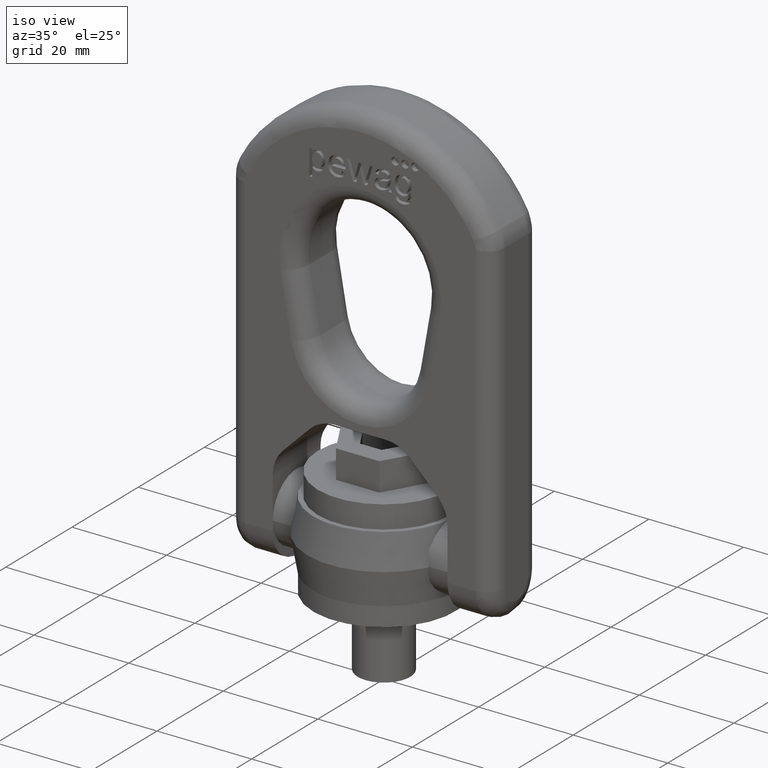
[diagram: clean part render]
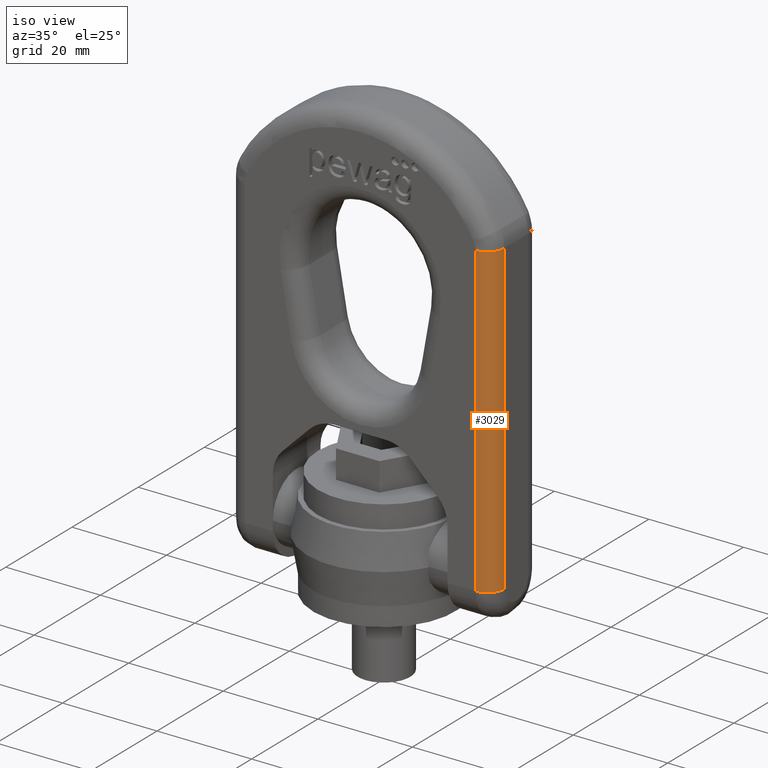
[diagram: same view with one face highlighted and labeled with its STEP entity id]
A machine part, iso view. The second image highlights one B-rep face of the part: STEP entity #3029.
In plain terms, the highlighted cylindrical surface (edge-blend (fillet) strip) has radius 3.6 mm, axis along (0, 0, -1).
Its self-contained STEP definition (entity closure, byte-faithful):
#1776=LINE('',#7077,#2084);
#1869=LINE('',#7758,#2177);
#2084=VECTOR('',#6199,1.);
#2177=VECTOR('',#6356,1.);
#2654=FACE_OUTER_BOUND('',#3422,.T.);
#3029=ADVANCED_FACE('',(#2654),#3063,.T.);
#3063=CYLINDRICAL_SURFACE('',#6045,3.6);
#3422=EDGE_LOOP('',(#4653,#4654,#4655,#4656));
#4653=ORIENTED_EDGE('',*,*,#5737,.F.);
#4654=ORIENTED_EDGE('',*,*,#5180,.F.);
#4655=ORIENTED_EDGE('',*,*,#5739,.F.);
#4656=ORIENTED_EDGE('',*,*,#5367,.F.);
#4742=VERTEX_POINT('',#7066);
#4747=VERTEX_POINT('',#7078);
#4923=VERTEX_POINT('',#7752);
#4926=VERTEX_POINT('',#7757);
#5180=EDGE_CURVE('',#4742,#4747,#1776,.T.);
#5367=EDGE_CURVE('',#4926,#4923,#1869,.T.);
#5737=EDGE_CURVE('',#4747,#4926,#5815,.T.);
#5739=EDGE_CURVE('',#4923,#4742,#5817,.T.);
#5815=CIRCLE('',#6042,3.6);
#5817=CIRCLE('',#6044,3.6);
#6042=AXIS2_PLACEMENT_3D('',#9775,#6892,#6893);
#6044=AXIS2_PLACEMENT_3D('',#9809,#6896,#6897);
#6045=AXIS2_PLACEMENT_3D('',#9810,#6898,#6899);
#6199=DIRECTION('',(-1.4065325480893E-16,0.,1.));
#6356=DIRECTION('',(1.4065325480893E-16,0.,-1.));
#6892=DIRECTION('',(0.,0.,1.));
#6893=DIRECTION('',(-1.,0.,0.));
#6896=DIRECTION('',(0.,0.,-1.));
#6897=DIRECTION('',(-1.,0.,0.));
#6898=DIRECTION('',(1.4065325480893E-16,0.,-1.));
#6899=DIRECTION('',(-1.,0.,0.));
#7066=CARTESIAN_POINT('',(24.4,-7.2,9.19999999999997));
#7077=CARTESIAN_POINT('',(24.4,-7.2,74.324996872654));
#7078=CARTESIAN_POINT('',(24.4,-7.2,74.324996872654));
#7752=CARTESIAN_POINT('',(28.,-3.6,9.19999999999997));
#7757=CARTESIAN_POINT('',(28.,-3.6,74.324996872654));
#7758=CARTESIAN_POINT('',(28.,-3.6,9.19999999999997));
#9775=CARTESIAN_POINT('',(24.4,-3.6,74.324996872654));
#9809=CARTESIAN_POINT('',(24.4,-3.6,9.19999999999997));
#9810=CARTESIAN_POINT('',(24.4,-3.6,63.2222222222222));